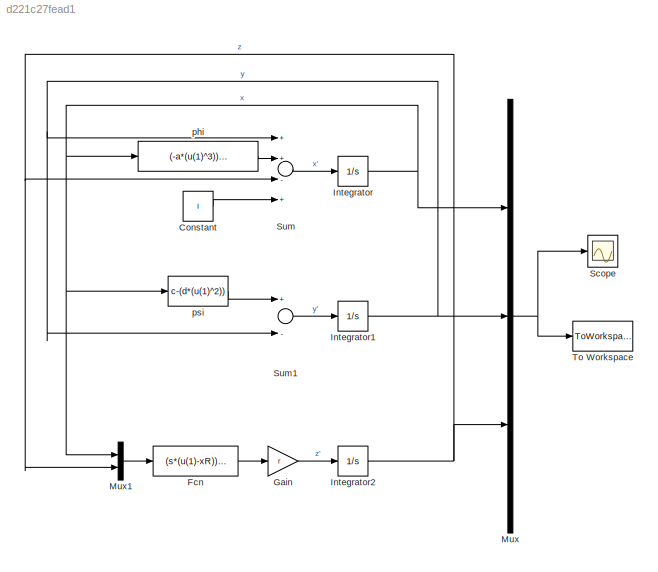
MODEL slx_d221c27fead1
KIND model
BLOCK [Constant] Constant
  Value = I
BLOCK [Fcn] Fcn
  Expr = (s*(u(1)-xR))-u(2)
BLOCK [Gain] Gain
  Gain = r
  OutDataTypeStr = Inherit: Inherit via internal rule
  ParamDataTypeStr = Inherit: Inherit via internal rule
  SaturateOnIntegerOverflow = off
BLOCK [Integrator] Integrator
  InitialCondition = param.ic(1)
  Ports = [1, 1]
BLOCK [Integrator] Integrator1
  InitialCondition = param.ic(2)
  Ports = [1, 1]
BLOCK [Integrator] Integrator2
  InitialCondition = param.ic(3)
  Ports = [1, 1]
BLOCK [Mux] Mux
  DisplayOption = bar
  Inputs = 3
  Ports = [3, 1]
BLOCK [Mux] Mux1
  DisplayOption = bar
  Inputs = 2
  Ports = [2, 1]
BLOCK [Scope] Scope
  Floating = off
  LegendLocations = 0.69187     0.61712     0.18981     0.20157
  LimitDataPoints = off
  NumInputPorts = 1
  Ports = [1]
  ShowLegends = on
  TimeRange = 0.05
  YMax = 2
  YMin = -6
BLOCK [Sum] Sum
  InputSameDT = off
  Inputs = ++-+
  OutDataTypeStr = Inherit: Inherit via internal rule
  Ports = [4, 1]
  SaturateOnIntegerOverflow = off
BLOCK [Sum] Sum1
  InputSameDT = off
  Inputs = +-
  OutDataTypeStr = Inherit: Inherit via internal rule
  Ports = [2, 1]
  SaturateOnIntegerOverflow = off
BLOCK [ToWorkspace] To Workspace
  FixptAsFi = on
  MaxDataPoints = inf
  Ports = [1]
  SampleTime = -1
  Save2DSignal = 3-D array (concatenate along third dimension)
  SaveFormat = Timeseries
  VariableName = simout
BLOCK [Fcn] phi
  Expr = (-a*(u(1)^3))+(b*(u(1)^2))
BLOCK [Fcn] psi
  Expr = c-(d*(u(1)^2))
LINE Constant:1 -> Sum:4
LINE Fcn:1 -> Gain:1
LINE Gain:1 -> Integrator2:1
NET Integrator1:1 -> Mux:2, Sum1:2, Sum:1
NET Integrator2:1 -> Mux1:2, Mux:3, Sum:3
NET Integrator:1 -> Mux1:1, Mux:1, phi:1, psi:1
LINE Mux1:1 -> Fcn:1
NET Mux:1 -> Scope:1, To Workspace:1
LINE Sum1:1 -> Integrator1:1
LINE Sum:1 -> Integrator:1
LINE phi:1 -> Sum:2
LINE psi:1 -> Sum1:1
note: NET lines group one-source signal fan-out (src -> all destinations, sorted); 1:1 wires keep LINE
